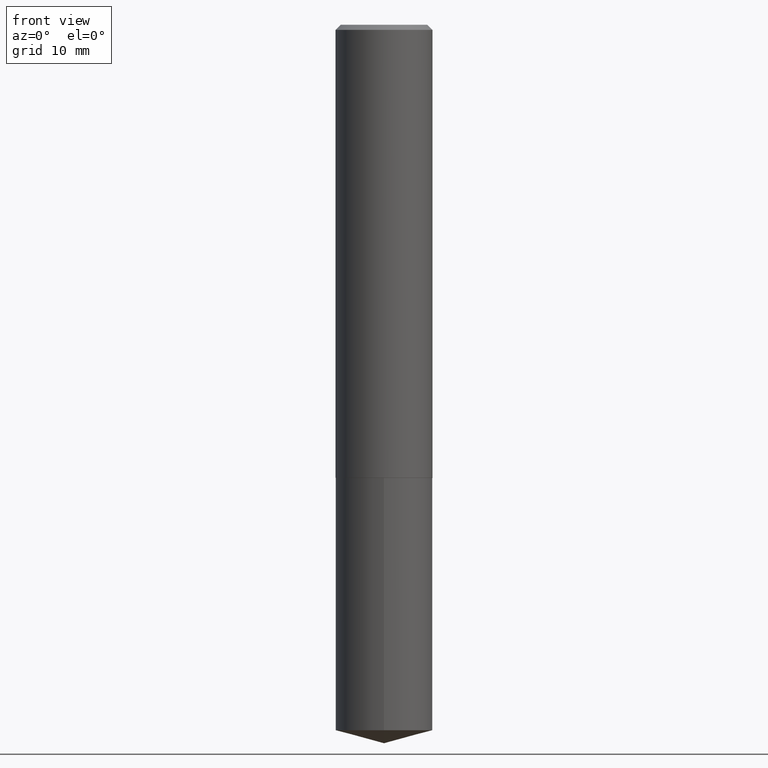
[diagram: clean part render]
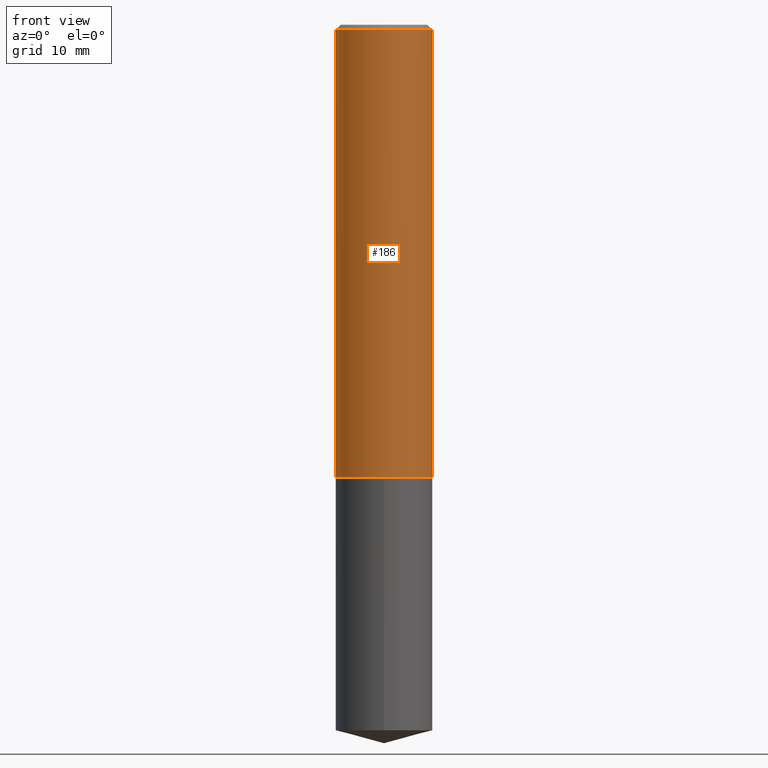
[diagram: same view with one face highlighted and labeled with its STEP entity id]
A machine part, front view. The second image highlights one B-rep face of the part: STEP entity #186.
In plain terms, the highlighted cylindrical surface (partial cylindrical patch) has radius 7.5006 mm, axis along (-0, 0, 1).
Its self-contained STEP definition (entity closure, byte-faithful):
#18 = DIRECTION ( 'NONE',  ( -2.445468806185136597E-29, 3.491481338843145583E-15, 1.000000000000000000 ) ) ;
#24 = DIRECTION ( 'NONE',  ( -2.445468806185136877E-29, 3.491481338843145188E-15, 1.000000000000000000 ) ) ;
#31 = AXIS2_PLACEMENT_3D ( 'NONE', #61, #312, #39 ) ;
#32 = ORIENTED_EDGE ( 'NONE', *, *, #258, .F. ) ;
#39 = DIRECTION ( 'NONE',  ( 1.000000000000000000, -6.982962677686268288E-15, 0.000000000000000000 ) ) ;
#46 = CARTESIAN_POINT ( 'NONE',  ( 0.2953000000000000069, -2.171177670559603663E-15, -0.03125000000000022898 ) ) ;
#58 = ORIENTED_EDGE ( 'NONE', *, *, #292, .F. ) ;
#61 = CARTESIAN_POINT ( 'NONE',  ( 6.738489295443143094E-29, -9.620776829182285610E-15, -2.755499999999999616 ) ) ;
#70 = ORIENTED_EDGE ( 'NONE', *, *, #207, .T. ) ;
#73 = AXIS2_PLACEMENT_3D ( 'NONE', #359, #18, #357 ) ;
#81 = EDGE_LOOP ( 'NONE', ( #32, #70, #283, #58 ) ) ;
#101 = CIRCLE ( 'NONE', #31, 0.2953000000000003955 ) ;
#113 = VERTEX_POINT ( 'NONE', #274 ) ;
#121 = CARTESIAN_POINT ( 'NONE',  ( 0.000000000000000000, 0.000000000000000000, 0.000000000000000000 ) ) ;
#131 = CARTESIAN_POINT ( 'NONE',  ( 0.2953000000000003955, -1.168284570790304451E-14, -2.755499999999999616 ) ) ;
#138 = VECTOR ( 'NONE', #210, 39.37007874015748143 ) ;
#186 = ADVANCED_FACE ( 'NONE', ( #216 ), #288, .T. ) ;
#200 = LINE ( 'NONE', #290, #236 ) ;
#207 = EDGE_CURVE ( 'NONE', #380, #285, #101, .T. ) ;
#210 = DIRECTION ( 'NONE',  ( -2.445468806185136877E-29, 3.491481338843145188E-15, 1.000000000000000000 ) ) ;
#216 = FACE_OUTER_BOUND ( 'NONE', #81, .T. ) ;
#219 = LINE ( 'NONE', #260, #138 ) ;
#236 = VECTOR ( 'NONE', #24, 39.37007874015748143 ) ;
#249 = VERTEX_POINT ( 'NONE', #46 ) ;
#251 = CIRCLE ( 'NONE', #73, 0.2953000000000000069 ) ;
#254 = DIRECTION ( 'NONE',  ( -2.445468806185136597E-29, 3.491481338843145583E-15, 1.000000000000000000 ) ) ;
#258 = EDGE_CURVE ( 'NONE', #380, #113, #219, .T. ) ;
#260 = CARTESIAN_POINT ( 'NONE',  ( -0.2953000000000001735, 2.098232698699577081E-15, -1.452561532152274683E-29 ) ) ;
#274 = CARTESIAN_POINT ( 'NONE',  ( -0.2953000000000000069, -2.766710111810989090E-15, -0.03125000000000022898 ) ) ;
#283 = ORIENTED_EDGE ( 'NONE', *, *, #374, .T. ) ;
#285 = VERTEX_POINT ( 'NONE', #131 ) ;
#288 = CYLINDRICAL_SURFACE ( 'NONE', #381, 0.2953000000000001735 ) ;
#290 = CARTESIAN_POINT ( 'NONE',  ( 0.2953000000000001735, -2.062068878720756141E-15, 1.439935001892540778E-29 ) ) ;
#292 = EDGE_CURVE ( 'NONE', #113, #249, #251, .T. ) ;
#312 = DIRECTION ( 'NONE',  ( -2.445468806185136597E-29, 3.491481338843145583E-15, 1.000000000000000000 ) ) ;
#342 = DIRECTION ( 'NONE',  ( 1.000000000000000000, -6.982962677686268288E-15, 4.876176775795936353E-29 ) ) ;
#357 = DIRECTION ( 'NONE',  ( 1.000000000000000000, -6.982962677686267499E-15, 0.000000000000000000 ) ) ;
#359 = CARTESIAN_POINT ( 'NONE',  ( 7.642090019328607041E-31, -1.091087918388490883E-16, -0.03125000000000022898 ) ) ;
#374 = EDGE_CURVE ( 'NONE', #285, #249, #200, .T. ) ;
#380 = VERTEX_POINT ( 'NONE', #384 ) ;
#381 = AXIS2_PLACEMENT_3D ( 'NONE', #121, #254, #342 ) ;
#384 = CARTESIAN_POINT ( 'NONE',  ( -0.2953000000000003955, -7.522544130482707345E-15, -2.755499999999999616 ) ) ;